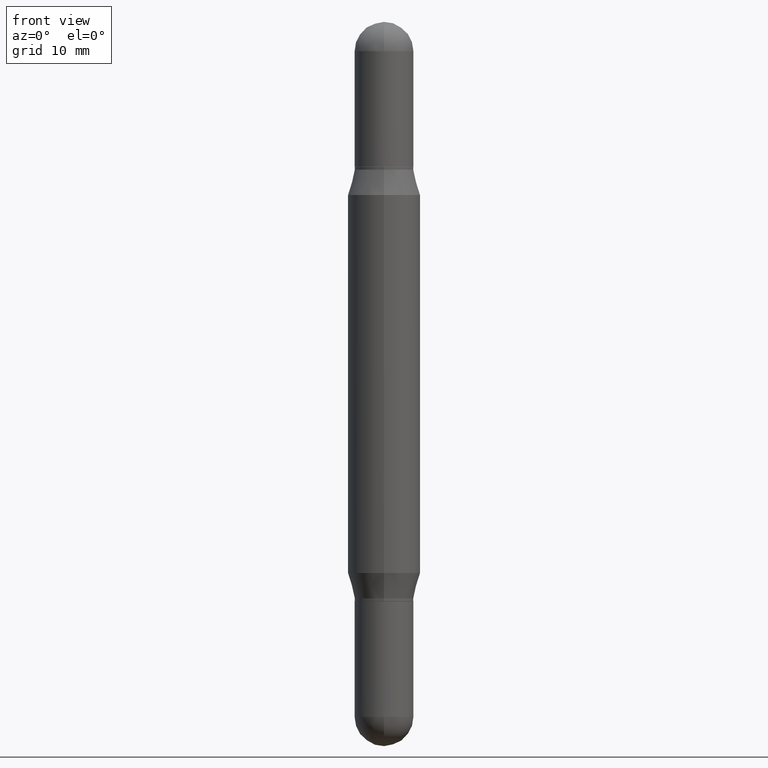
[diagram: clean part render]
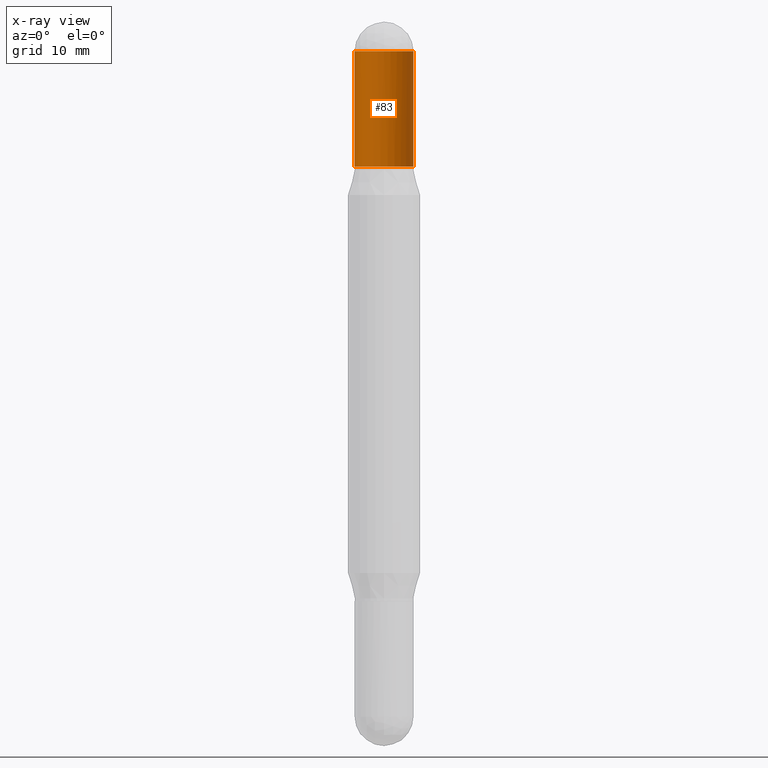
[diagram: x-ray — body ghosted, one internal face saturated and labeled with its STEP entity id]
A machine part, front view, then the same camera in x-ray: the body is ghosted and one INTERNAL B-rep face — a face not visible from any outside direction — is saturated and labeled: STEP entity #83.
In plain terms, the highlighted cylindrical surface (edge-blend (fillet) strip) has radius 2.5794 mm, axis along (-0, -0, -1).
Its self-contained STEP definition (entity closure, byte-faithful):
#5 = ORIENTED_EDGE ( 'NONE', *, *, #980, .T. ) ;
#25 = AXIS2_PLACEMENT_3D ( 'NONE', #109, #992, #36 ) ;
#36 = DIRECTION ( 'NONE',  ( 1.000000000000000000, -6.982962677686265922E-15, 0.000000000000000000 ) ) ;
#77 = CARTESIAN_POINT ( 'NONE',  ( 7.091198599190993550E-16, 0.1015499999999996822, -0.1015500000000002651 ) ) ;
#83 = ADVANCED_FACE ( 'NONE', ( #952 ), #847, .T. ) ;
#109 = CARTESIAN_POINT ( 'NONE',  ( 5.865334658194741045E-29, -3.681884389532433645E-16, -0.1015499999999999042 ) ) ;
#127 = ORIENTED_EDGE ( 'NONE', *, *, #853, .T. ) ;
#164 = CARTESIAN_POINT ( 'NONE',  ( 0.000000000000000000, -8.713869757276216901E-15, -2.500000000000000000 ) ) ;
#171 = VERTEX_POINT ( 'NONE', #247 ) ;
#224 = LINE ( 'NONE', #740, #474 ) ;
#235 = CIRCLE ( 'NONE', #821, 0.1015500000000000708 ) ;
#247 = CARTESIAN_POINT ( 'NONE',  ( -0.1015500000000000985, -3.647310594632026057E-16, -0.1015499999999999042 ) ) ;
#248 = CARTESIAN_POINT ( 'NONE',  ( 0.1015500000000000708, -2.463760683239602359E-15, -0.5000000000000001110 ) ) ;
#253 = LINE ( 'NONE', #681, #634 ) ;
#284 = CIRCLE ( 'NONE', #613, 0.1015500000000000985 ) ;
#299 = DIRECTION ( 'NONE',  ( 1.000000000000000000, -6.982962677686265922E-15, 0.000000000000000000 ) ) ;
#346 = ORIENTED_EDGE ( 'NONE', *, *, #658, .F. ) ;
#387 = DIRECTION ( 'NONE',  ( 2.445468806185136597E-29, 3.479614466977828254E-15, 1.000000000000000000 ) ) ;
#407 = DIRECTION ( 'NONE',  ( -2.445468806185136877E-29, -3.479614466977828648E-15, -1.000000000000000000 ) ) ;
#462 = VERTEX_POINT ( 'NONE', #77 ) ;
#474 = VECTOR ( 'NONE', #407, 39.37007874015748143 ) ;
#486 = ORIENTED_EDGE ( 'NONE', *, *, #863, .F. ) ;
#509 = CIRCLE ( 'NONE', #25, 0.1015500000000000985 ) ;
#584 = DIRECTION ( 'NONE',  ( -2.445468806185136597E-29, -3.479614466977828254E-15, -1.000000000000000000 ) ) ;
#613 = AXIS2_PLACEMENT_3D ( 'NONE', #708, #937, #299 ) ;
#623 = VERTEX_POINT ( 'NONE', #686 ) ;
#625 = VERTEX_POINT ( 'NONE', #248 ) ;
#634 = VECTOR ( 'NONE', #684, 39.37007874015748143 ) ;
#658 = EDGE_CURVE ( 'NONE', #623, #462, #509, .T. ) ;
#667 = CARTESIAN_POINT ( 'NONE',  ( 4.890937612370273194E-29, -1.754640823320560985E-15, -0.5000000000000001110 ) ) ;
#681 = CARTESIAN_POINT ( 'NONE',  ( 0.1015500000000000708, -9.422989617195257683E-15, -2.500000000000000000 ) ) ;
#684 = DIRECTION ( 'NONE',  ( -2.445468806185136877E-29, -3.479614466977828648E-15, -1.000000000000000000 ) ) ;
#686 = CARTESIAN_POINT ( 'NONE',  ( 0.1015500000000000985, -1.770534491055943548E-15, -0.1015499999999999042 ) ) ;
#708 = CARTESIAN_POINT ( 'NONE',  ( 5.865334658194741045E-29, -3.681884389532433645E-16, -0.1015499999999999042 ) ) ;
#740 = CARTESIAN_POINT ( 'NONE',  ( -0.1015500000000000708, -8.017186185602518861E-15, -2.500000000000000000 ) ) ;
#749 = EDGE_CURVE ( 'NONE', #462, #171, #284, .T. ) ;
#751 = CARTESIAN_POINT ( 'NONE',  ( -0.1015500000000000708, -3.647310594632031974E-16, -0.5000000000000001110 ) ) ;
#809 = VERTEX_POINT ( 'NONE', #751 ) ;
#821 = AXIS2_PLACEMENT_3D ( 'NONE', #667, #387, #841 ) ;
#841 = DIRECTION ( 'NONE',  ( 1.000000000000000000, -6.982962677686269866E-15, 0.000000000000000000 ) ) ;
#847 = CYLINDRICAL_SURFACE ( 'NONE', #926, 0.1015500000000000708 ) ;
#853 = EDGE_CURVE ( 'NONE', #625, #809, #235, .T. ) ;
#859 = DIRECTION ( 'NONE',  ( 1.000000000000000000, -6.982962677686259611E-15, 0.000000000000000000 ) ) ;
#863 = EDGE_CURVE ( 'NONE', #171, #809, #224, .T. ) ;
#871 = EDGE_LOOP ( 'NONE', ( #486, #990, #346, #5, #127 ) ) ;
#926 = AXIS2_PLACEMENT_3D ( 'NONE', #164, #584, #859 ) ;
#937 = DIRECTION ( 'NONE',  ( 2.445468806185136597E-29, 3.479614466977828254E-15, 1.000000000000000000 ) ) ;
#952 = FACE_OUTER_BOUND ( 'NONE', #871, .T. ) ;
#980 = EDGE_CURVE ( 'NONE', #623, #625, #253, .T. ) ;
#990 = ORIENTED_EDGE ( 'NONE', *, *, #749, .F. ) ;
#992 = DIRECTION ( 'NONE',  ( 2.445468806185136597E-29, 3.479614466977828254E-15, 1.000000000000000000 ) ) ;